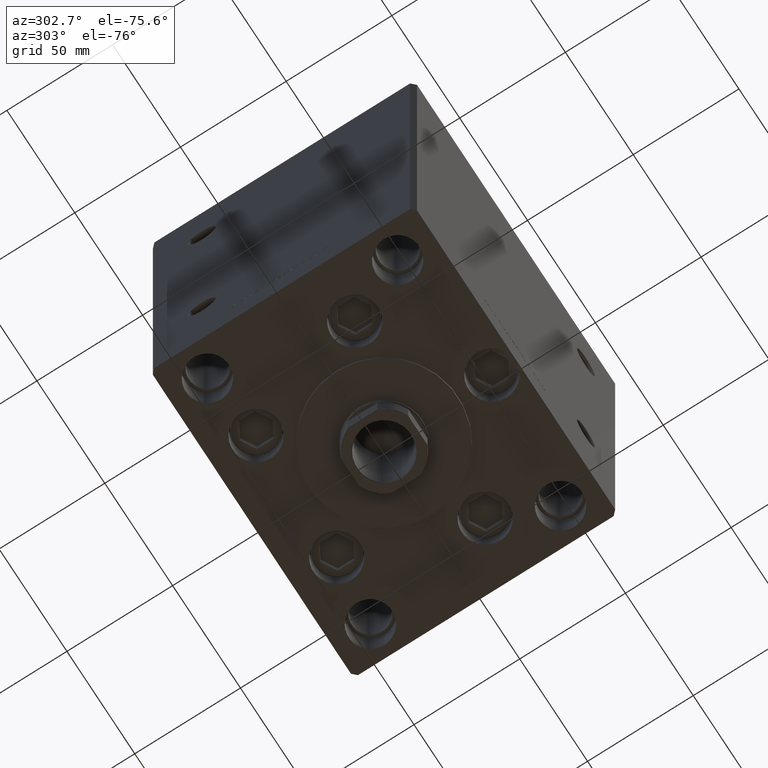
[diagram: clean part render]
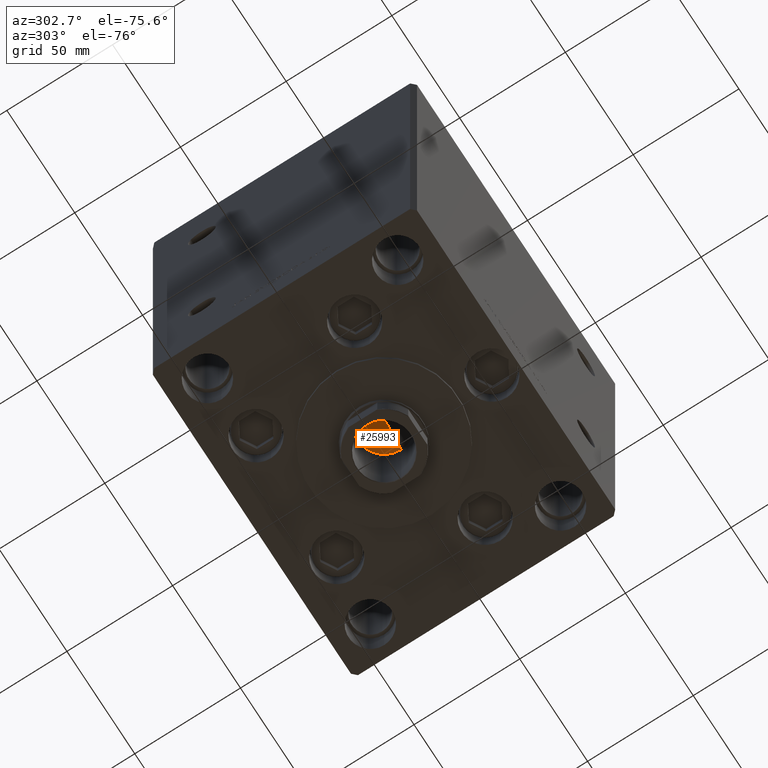
[diagram: same view with one face highlighted and labeled with its STEP entity id]
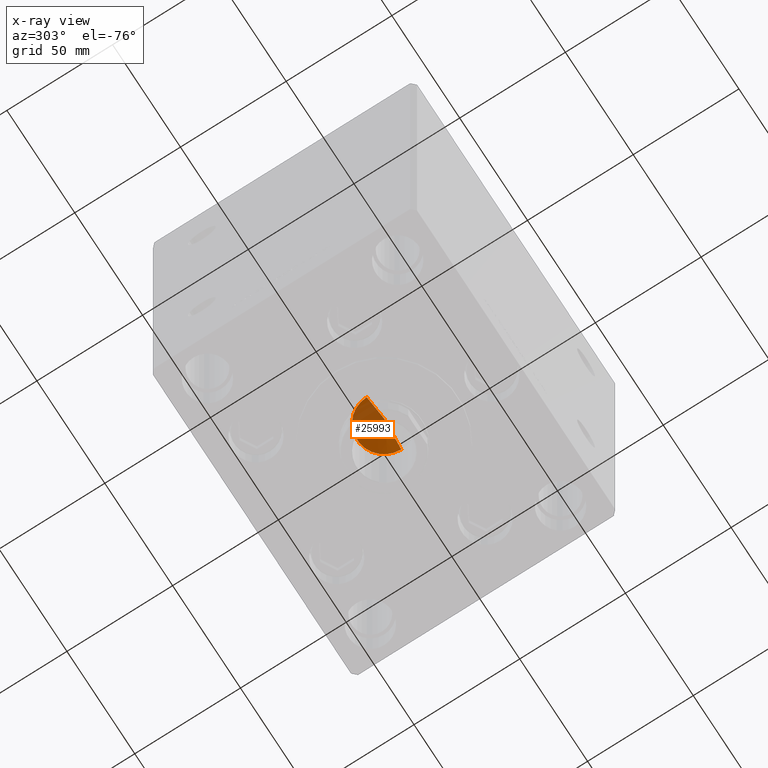
[diagram: x-ray of the same camera — body ghosted, the highlighted face saturated]
A machine part, auxiliary view. The second image highlights one B-rep face of the part: STEP entity #25993.
The next image is the same camera in x-ray: the body ghosted, the highlighted face saturated — about 35% of this face is hidden behind the body in this view.
In plain terms, the highlighted conical surface has half-angle 59 deg.
Its self-contained STEP definition (entity closure, byte-faithful):
#1393 = CARTESIAN_POINT ( 'NONE',  ( -12.74999999999999112, 1.561424668912874125E-15, 137.5000000000000000 ) ) ;
#3183 = ORIENTED_EDGE ( 'NONE', *, *, #25415, .F. ) ;
#3626 = VERTEX_POINT ( 'NONE', #38892 ) ;
#6606 = ORIENTED_EDGE ( 'NONE', *, *, #23808, .T. ) ;
#7470 = VECTOR ( 'NONE', #35041, 1000.000000000000114 ) ;
#8371 = CARTESIAN_POINT ( 'NONE',  ( -12.74999999999999112, 1.561424668912874125E-15, 137.5000000000000000 ) ) ;
#8486 = VECTOR ( 'NONE', #38626, 1000.000000000000114 ) ;
#13125 = CIRCLE ( 'NONE', #19647, 12.74999999999999112 ) ;
#14549 = ORIENTED_EDGE ( 'NONE', *, *, #22939, .T. ) ;
#15039 = DIRECTION ( 'NONE',  ( -0.000000000000000000, -0.000000000000000000, 1.000000000000000000 ) ) ;
#15806 = AXIS2_PLACEMENT_3D ( 'NONE', #49110, #15039, #38191 ) ;
#19647 = AXIS2_PLACEMENT_3D ( 'NONE', #30219, #22575, #30462 ) ;
#22575 = DIRECTION ( 'NONE',  ( -0.000000000000000000, -0.000000000000000000, 1.000000000000000000 ) ) ;
#22939 = EDGE_CURVE ( 'NONE', #3626, #32698, #13125, .T. ) ;
#23808 = EDGE_CURVE ( 'NONE', #45192, #3626, #41666, .T. ) ;
#24180 = CARTESIAN_POINT ( 'NONE',  ( -1.307202896762960287E-14, 0.000000000000000000, 129.8390271073986355 ) ) ;
#25415 = EDGE_CURVE ( 'NONE', #45192, #32698, #31010, .T. ) ;
#25993 = ADVANCED_FACE ( 'NONE', ( #49361 ), #30439, .F. ) ;
#30219 = CARTESIAN_POINT ( 'NONE',  ( 0.000000000000000000, 0.000000000000000000, 137.5000000000000000 ) ) ;
#30439 = CONICAL_SURFACE ( 'NONE', #15806, 12.74999999999999112, 1.029744258676655200 ) ;
#30462 = DIRECTION ( 'NONE',  ( 1.000000000000000000, 0.000000000000000000, 0.000000000000000000 ) ) ;
#31010 = LINE ( 'NONE', #8371, #8486 ) ;
#32698 = VERTEX_POINT ( 'NONE', #1393 ) ;
#35041 = DIRECTION ( 'NONE',  ( 0.8571673007021125557, 0.000000000000000000, 0.5150380749100536004 ) ) ;
#38191 = DIRECTION ( 'NONE',  ( 1.000000000000000000, 0.000000000000000000, 0.000000000000000000 ) ) ;
#38347 = CARTESIAN_POINT ( 'NONE',  ( 12.74999999999999112, 0.000000000000000000, 137.5000000000000000 ) ) ;
#38626 = DIRECTION ( 'NONE',  ( -0.8571673007021125557, 1.049727191138618942E-16, 0.5150380749100536004 ) ) ;
#38892 = CARTESIAN_POINT ( 'NONE',  ( 12.74999999999999112, 0.000000000000000000, 137.5000000000000000 ) ) ;
#40761 = EDGE_LOOP ( 'NONE', ( #3183, #6606, #14549 ) ) ;
#41666 = LINE ( 'NONE', #38347, #7470 ) ;
#45192 = VERTEX_POINT ( 'NONE', #24180 ) ;
#49110 = CARTESIAN_POINT ( 'NONE',  ( 0.000000000000000000, 0.000000000000000000, 137.5000000000000000 ) ) ;
#49361 = FACE_OUTER_BOUND ( 'NONE', #40761, .T. ) ;